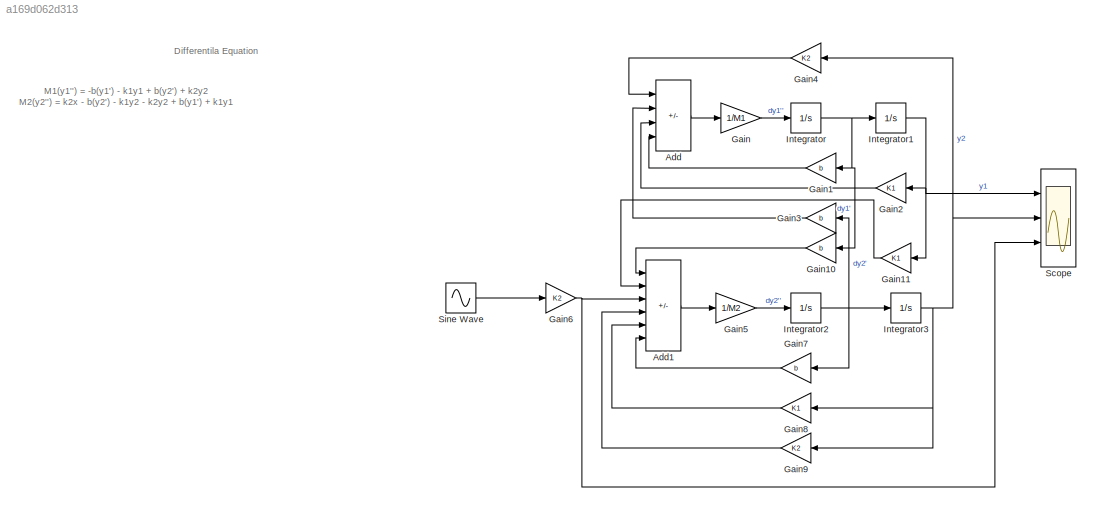
MODEL slx_a169d062d313
KIND model
CONFIG AbsTol = auto
CONFIG EnableMultiTasking = off
CONFIG FixedStep = auto
CONFIG MaxStep = 0.01
CONFIG MinStep = auto
CONFIG RelTol = 1e-3
CONFIG SampleTimeConstraint = Unconstrained
CONFIG Solver = VariableStepAuto
CONFIG SolverName = VariableStepAuto
CONFIG StartTime = 0.0
CONFIG StopTime = 100
WORKSPACE source: mxarray member
WORKSPACE K1: Simulink.Parameter (value not decoded)
WORKSPACE K2: Simulink.Parameter (value not decoded)
WORKSPACE M1: Simulink.Parameter (value not decoded)
WORKSPACE M2: Simulink.Parameter (value not decoded)
WORKSPACE b: Simulink.Parameter (value not decoded)
BLOCK [Sum] Add
  IconShape = rectangular
  Inputs = ++--
  Ports = [4, 1]
BLOCK [Sum] Add1
  IconShape = rectangular
  Inputs = +++---
  Ports = [6, 1]
BLOCK [Gain] Gain
  Gain = 1/M1
BLOCK [Gain] Gain1
  Gain = b
BLOCK [Gain] Gain10
  Gain = b
BLOCK [Gain] Gain11
  Gain = K1
BLOCK [Gain] Gain2
  Gain = K1
BLOCK [Gain] Gain3
  Gain = b
BLOCK [Gain] Gain4
  Gain = K2
BLOCK [Gain] Gain5
  Gain = 1/M2
BLOCK [Gain] Gain6
  Gain = K2
BLOCK [Gain] Gain7
  Gain = b
BLOCK [Gain] Gain8
  Gain = K1
BLOCK [Gain] Gain9
  Gain = K2
BLOCK [Integrator] Integrator
  Ports = [1, 1]
BLOCK [Integrator] Integrator1
  Ports = [1, 1]
BLOCK [Integrator] Integrator2
  Ports = [1, 1]
BLOCK [Integrator] Integrator3
  Ports = [1, 1]
BLOCK [Scope] Scope
  Floating = off
  NumInputPorts = 3
  Ports = [3]
  ScopeSpecificationString = Simulink.scopes.TimeScopeBlockCfg('CurrentConfiguration', extmgr.ConfigurationSet(extmgr.Configuration('Core','General UI',true),extmgr.Configuration('Core','Source UI',true),extmgr.Configuration('Sources','WiredSimulink',true),extmgr.Configuration('Visuals','Time Domain',true,'SerializedDisplays',{struct('MinYLimReal','-6.99061','MaxYLimReal','7.12031','YLabelReal','','MinYLimMag','0.00000','MaxY...<+2973ch>
BLOCK [Sin] Sine Wave
  Amplitude = 0.2
  Frequency = 0.2
  Ports = [0, 1]
  SampleTime = 0
ANNOTATION (root): Differentila Equation
ANNOTATION (root): M1(y1'') = -b(y1') - k1y1 + b(y2') + k2y2 M2(y2'') = k2x - b(y2') - k1y2 - k2y2 + b(y1') + k1y1
LINE Add1:1 -> Gain5:1
LINE Add:1 -> Gain:1
LINE Gain10:1 -> Add1:1
LINE Gain11:1 -> Add1:2
LINE Gain1:1 -> Add:4
LINE Gain2:1 -> Add:3
LINE Gain3:1 -> Add:2
LINE Gain4:1 -> Add:1
LINE Gain5:1 -> Integrator2:1
NET Gain6:1 -> Add1:3, Scope:3
LINE Gain7:1 -> Add1:6
LINE Gain8:1 -> Add1:5
LINE Gain9:1 -> Add1:4
LINE Gain:1 -> Integrator:1
NET Integrator1:1 -> Gain11:1, Gain2:1, Scope:1
NET Integrator2:1 -> Gain3:1, Gain7:1, Integrator3:1
NET Integrator3:1 -> Gain4:1, Gain8:1, Gain9:1, Scope:2
NET Integrator:1 -> Gain10:1, Gain1:1, Integrator1:1
LINE Sine Wave:1 -> Gain6:1
note: NET lines group one-source signal fan-out (src -> all destinations, sorted); 1:1 wires keep LINE
